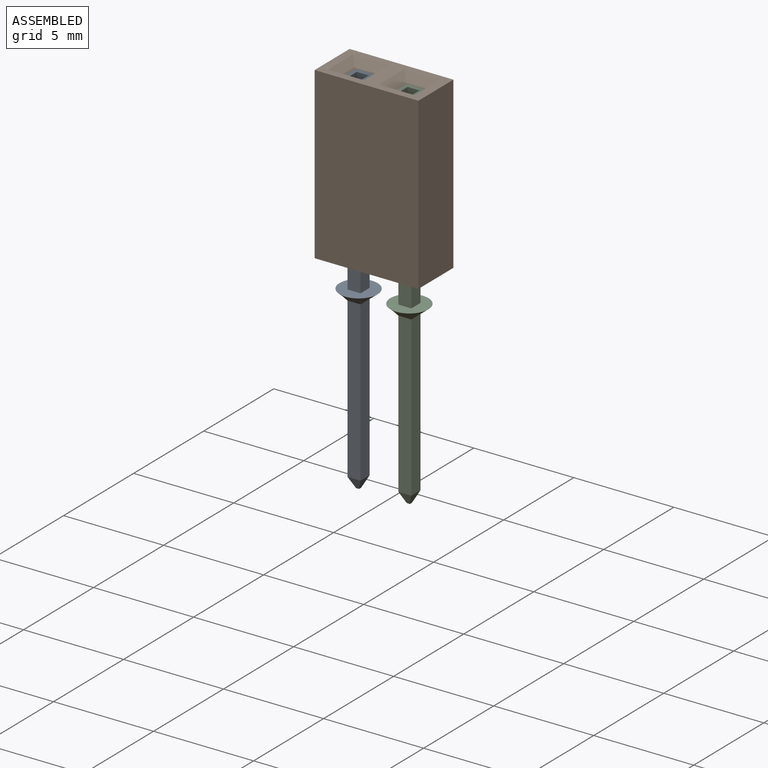
[diagram: assembled view]
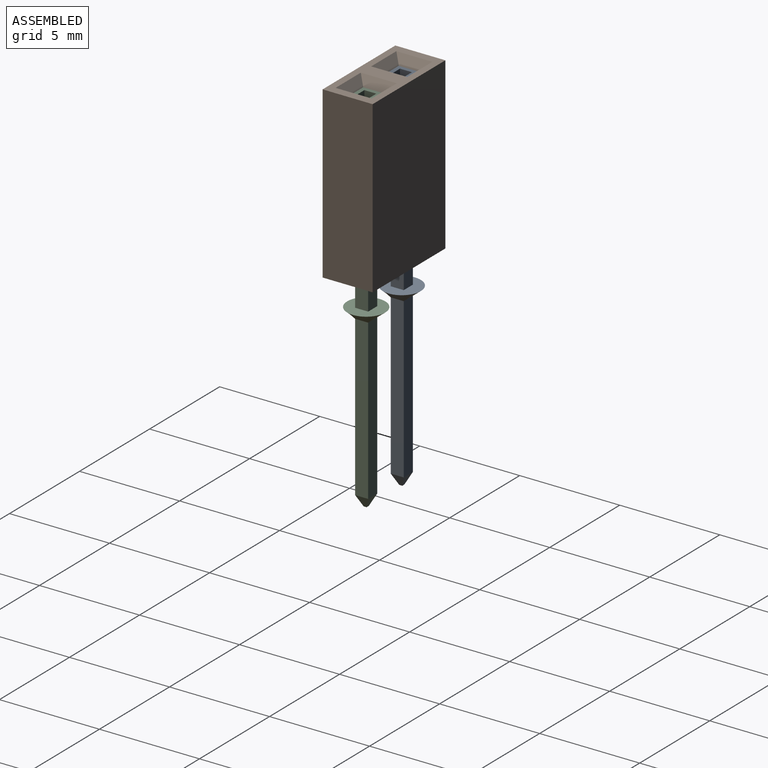
[diagram: assembled view, second angle]
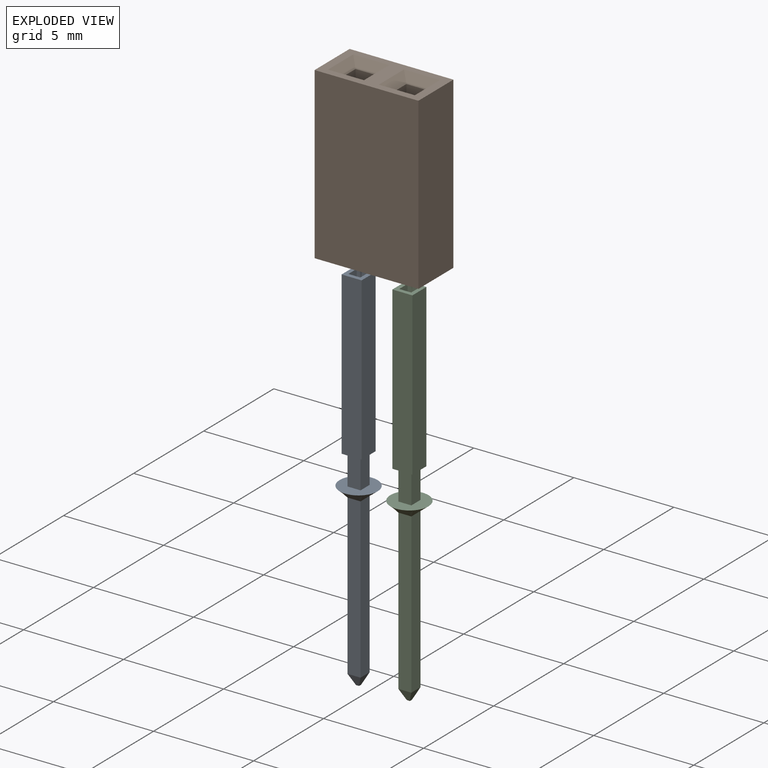
[diagram: exploded view]
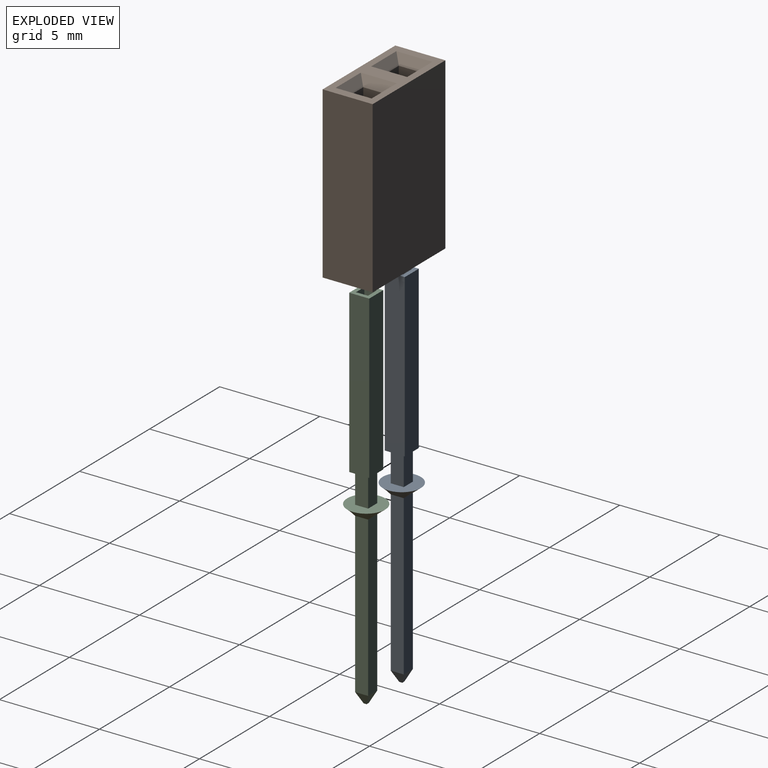
[diagram: exploded view, second angle]
ASSEMBLY  parts=3 mates=2
PART A: 29 faces, bbox 1.9x1.9x18.6 mm
  f0: plane 1.5x0.65mm, normal (0,1,0), area 1mm2, adj f1,f3,f14,f15
  f1: plane 1.5x0.65mm, normal (1,0,0), area 1mm2, adj f0,f2,f14,f15
  f2: plane 1.5x0.65mm, normal (0,-1,0), area 1mm2, adj f1,f3,f14,f15
  f3: plane 1.5x0.65mm, normal (-1,0,0), area 1mm2, adj f0,f2,f14,f15
  f4: plane 8.1x1mm, normal (0,1,0), area 8.1mm2, adj f5,f11,f12,f14
  f5: plane 8.1x1mm, normal (-1,0,0), area 8.1mm2, adj f4,f6,f12,f14
  f6: plane 8.1x1mm, normal (0,-1,0), area 8.1mm2, adj f5,f11,f12,f14
  f7: plane 3x0.6mm, normal (0,-1,0), area 1.8mm2, adj f8,f10,f12,f13
  f8: plane 3x0.6mm, normal (-1,0,0), area 1.8mm2, adj f7,f9,f12,f13
  f9: plane 3x0.6mm, normal (0,1,0), area 1.8mm2, adj f8,f10,f12,f13
  f10: plane 3x0.6mm, normal (1,0,0), area 1.8mm2, adj f7,f9,f12,f13
  f11: plane 8.1x1mm, normal (1,0,0), area 8.1mm2, adj f4,f6,f12,f14
  f12: plane 1x1mm, normal (0,0,1), area 0.6mm2, adj f4,f5,f6,f7,f8,f9,f10,f11
  f13: plane 0.6x0.6mm, normal (0,0,1), area 0.4mm2, adj f7,f8,f9,f10
  f14: plane 1x1mm, normal (0,0,-1), area 0.6mm2, adj f0,f1,f2,f3,f4,f5,f6,f11
  f15: plane 1.9x1.9mm, normal (0,0,1), area 2.4mm2, adj f0,f1,f2,f3,f16,f17,f18,f19
  f16: bspline ~1.34x0.63mm, area 0.8mm2, adj f15,f17,f19,f26
  f17: bspline ~1.34x0.63mm, area 0.8mm2, adj f15,f16,f18,f25
  f18: bspline ~1.34x0.63mm, area 0.8mm2, adj f15,f17,f19,f28
  f19: bspline ~1.34x0.63mm, area 0.8mm2, adj f15,f16,f18,f27
  f20: plane 0.15x0.15mm, normal (0,0,-1), area 0mm2, adj f21,f22,f23,f24
  f21: plane 0.65x0.54mm, normal (0,0.91,-0.42), area 0.2mm2, adj f20,f22,f24,f28
  f22: plane 0.65x0.54mm, normal (0.91,0,-0.42), area 0.2mm2, adj f20,f21,f23,f27
  f23: plane 0.65x0.54mm, normal (0,-0.91,-0.42), area 0.2mm2, adj f20,f22,f24,f26
  f24: plane 0.65x0.54mm, normal (-0.91,0,-0.42), area 0.2mm2, adj f20,f21,f23,f25
  f25: plane 7.96x0.65mm, normal (-1,0,0), area 5.2mm2, adj f17,f24,f26,f28
  f26: plane 7.96x0.65mm, normal (0,-1,0), area 5.2mm2, adj f16,f23,f25,f27
  f27: plane 7.96x0.65mm, normal (1,0,0), area 5.2mm2, adj f19,f22,f26,f28
  f28: plane 7.96x0.65mm, normal (0,1,0), area 5.2mm2, adj f18,f21,f25,f27
PART B: 22 faces, bbox 5.2x2.5x8.5 mm
  f0: plane 8.5x5.19mm, normal (0,-1,0), area 44.1mm2, adj f6,f7,f8,f13
  f1: plane 8.5x5.19mm, normal (0,1,0), area 44.1mm2, adj f6,f7,f8,f13
  f2: plane 8.1x1mm, normal (-1,0,0), area 8.1mm2, adj f3,f5,f8,f9
  f3: plane 8.1x1mm, normal (0,1,0), area 8.1mm2, adj f2,f4,f8,f10
  f4: plane 8.1x1mm, normal (1,0,0), area 8.1mm2, adj f3,f5,f8,f12
  f5: plane 8.1x1mm, normal (0,-1,0), area 8.1mm2, adj f2,f4,f8,f11
  f6: plane 8.5x2.5mm, normal (-1,0,0), area 21.2mm2, adj f0,f1,f7,f8
  f7: plane 5.19x2.5mm, normal (0,0,1), area 6.5mm2, adj f0,f1,f6,f9,f10,f11,f12,f13
  f8: plane 5.19x2.5mm, normal (0,0,-1), area 11mm2, adj f0,f1,f2,f3,f4,f5,f6,f13
  f9: plane 1.8x0.4mm, normal (-0.71,0,0.71), area 0.8mm2, adj f2,f7,f10,f11
  f10: plane 1.8x0.4mm, normal (0,0.71,0.71), area 0.8mm2, adj f3,f7,f9,f12
  f11: plane 1.8x0.4mm, normal (0,-0.71,0.71), area 0.8mm2, adj f5,f7,f9,f12
  f12: plane 1.8x0.4mm, normal (0.71,0,0.71), area 0.8mm2, adj f4,f7,f10,f11
  f13: plane 8.5x2.5mm, normal (1,0,0), area 21.2mm2, adj f0,f1,f7,f8
  f14: plane 8.1x1mm, normal (-1,0,0), area 8.1mm2, adj f8,f15,f17,f18
  f15: plane 8.1x1mm, normal (0,1,0), area 8.1mm2, adj f8,f14,f16,f19
  f16: plane 8.1x1mm, normal (1,0,0), area 8.1mm2, adj f8,f15,f17,f21
  f17: plane 8.1x1mm, normal (0,-1,0), area 8.1mm2, adj f8,f14,f16,f20
  f18: plane 1.8x0.4mm, normal (-0.71,0,0.71), area 0.8mm2, adj f7,f14,f19,f20
  f19: plane 1.8x0.4mm, normal (0,0.71,0.71), area 0.8mm2, adj f7,f15,f18,f21
  f20: plane 1.8x0.4mm, normal (0,-0.71,0.71), area 0.8mm2, adj f7,f17,f18,f21
  f21: plane 1.8x0.4mm, normal (0.71,0,0.71), area 0.8mm2, adj f7,f16,f19,f20
PART C: 29 faces, bbox 1.9x1.9x18.6 mm
  f0: plane 1.5x0.65mm, normal (0,1,0), area 1mm2, adj f1,f3,f14,f15
  f1: plane 1.5x0.65mm, normal (1,0,0), area 1mm2, adj f0,f2,f14,f15
  f2: plane 1.5x0.65mm, normal (0,-1,0), area 1mm2, adj f1,f3,f14,f15
  f3: plane 1.5x0.65mm, normal (-1,0,0), area 1mm2, adj f0,f2,f14,f15
  f4: plane 8.1x1mm, normal (0,1,0), area 8.1mm2, adj f5,f11,f12,f14
  f5: plane 8.1x1mm, normal (-1,0,0), area 8.1mm2, adj f4,f6,f12,f14
  f6: plane 8.1x1mm, normal (0,-1,0), area 8.1mm2, adj f5,f11,f12,f14
  f7: plane 3x0.6mm, normal (0,-1,0), area 1.8mm2, adj f8,f10,f12,f13
  f8: plane 3x0.6mm, normal (-1,0,0), area 1.8mm2, adj f7,f9,f12,f13
  f9: plane 3x0.6mm, normal (0,1,0), area 1.8mm2, adj f8,f10,f12,f13
  f10: plane 3x0.6mm, normal (1,0,0), area 1.8mm2, adj f7,f9,f12,f13
  f11: plane 8.1x1mm, normal (1,0,0), area 8.1mm2, adj f4,f6,f12,f14
  f12: plane 1x1mm, normal (0,0,1), area 0.6mm2, adj f4,f5,f6,f7,f8,f9,f10,f11
  f13: plane 0.6x0.6mm, normal (0,0,1), area 0.4mm2, adj f7,f8,f9,f10
  f14: plane 1x1mm, normal (0,0,-1), area 0.6mm2, adj f0,f1,f2,f3,f4,f5,f6,f11
  f15: plane 1.9x1.9mm, normal (0,0,1), area 2.4mm2, adj f0,f1,f2,f3,f16,f17,f18,f19
  f16: bspline ~1.34x0.63mm, area 0.8mm2, adj f15,f17,f19,f26
  f17: bspline ~1.34x0.63mm, area 0.8mm2, adj f15,f16,f18,f25
  f18: bspline ~1.34x0.63mm, area 0.8mm2, adj f15,f17,f19,f28
  f19: bspline ~1.34x0.63mm, area 0.8mm2, adj f15,f16,f18,f27
  f20: plane 0.15x0.15mm, normal (0,0,-1), area 0mm2, adj f21,f22,f23,f24
  f21: plane 0.65x0.54mm, normal (0,0.91,-0.42), area 0.2mm2, adj f20,f22,f24,f28
  f22: plane 0.65x0.54mm, normal (0.91,0,-0.42), area 0.2mm2, adj f20,f21,f23,f27
  f23: plane 0.65x0.54mm, normal (0,-0.91,-0.42), area 0.2mm2, adj f20,f22,f24,f26
  f24: plane 0.65x0.54mm, normal (-0.91,0,-0.42), area 0.2mm2, adj f20,f21,f23,f25
  f25: plane 7.96x0.65mm, normal (-1,0,0), area 5.2mm2, adj f17,f24,f26,f28
  f26: plane 7.96x0.65mm, normal (0,-1,0), area 5.2mm2, adj f16,f23,f25,f27
  f27: plane 7.96x0.65mm, normal (1,0,0), area 5.2mm2, adj f19,f22,f26,f28
  f28: plane 7.96x0.65mm, normal (0,1,0), area 5.2mm2, adj f18,f21,f25,f27
PLACE A t=(-5.29,-2.09,1.35)mm
PLACE B t=(-5.29,-2.09,1.35)mm
PLACE C t=(-5.29,-2.09,1.35)mm
MATE fastened A.f14 <-> B.f8  axis (0,0,-1) through (-5.29,-2.09,1.35)mm
MATE fastened C.f14 <-> B.f8  axis (0,0,-1) through (-2.75,-2.09,1.35)mm
